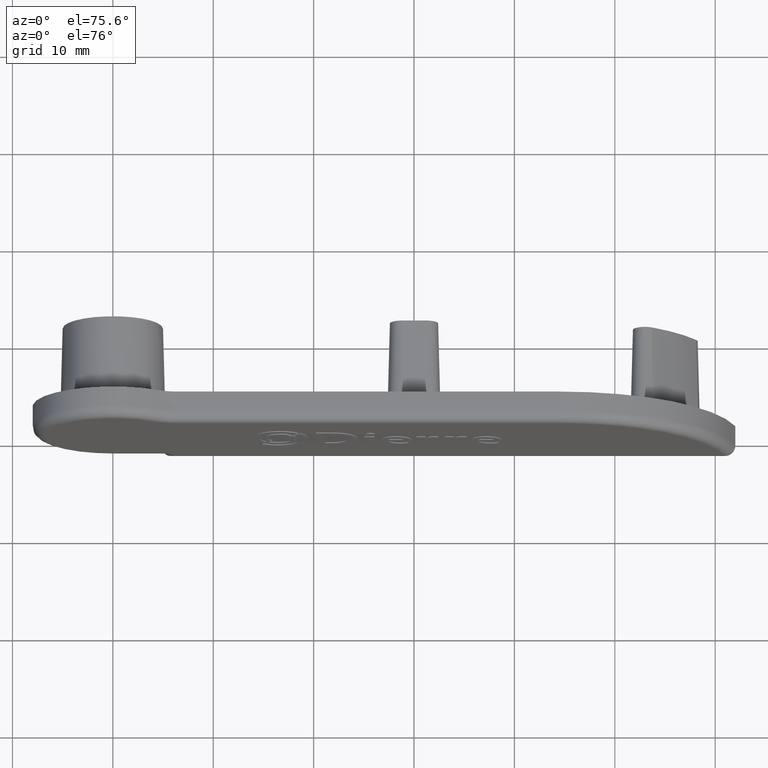
[diagram: clean part render]
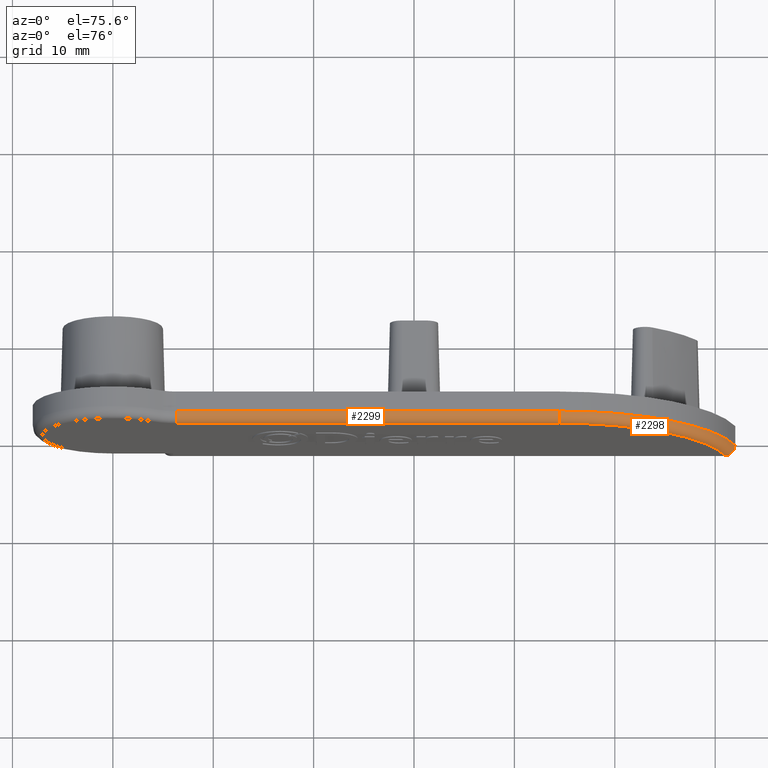
[diagram: same view with one multi-face feature highlighted, each face labeled with its STEP entity id]
A machine part, auxiliary view. The highlighted faces form ONE feature: a constant-radius fillet chain: 2 tangent blend faces with common blend radius 1 mm. The faces share edges in the B-rep.
Their STEP definitions:
[1] entity #2299 (Cylinder):
#32=CYLINDRICAL_SURFACE('',#2424,1.);
#46=CIRCLE('',#2423,1.);
#47=CIRCLE('',#2425,1.);
#307=FACE_OUTER_BOUND('',#456,.T.);
#456=EDGE_LOOP('',(#1933,#1934,#1935,#1936));
#651=LINE('',#4329,#862);
#656=LINE('',#4358,#867);
#862=VECTOR('',#2743,10.);
#867=VECTOR('',#2778,10.);
#1078=VERTEX_POINT('',#4326);
#1079=VERTEX_POINT('',#4328);
#1087=VERTEX_POINT('',#4352);
#1088=VERTEX_POINT('',#4356);
#1369=EDGE_CURVE('',#1079,#1078,#651,.T.);
#1381=EDGE_CURVE('',#1087,#1078,#46,.T.);
#1382=EDGE_CURVE('',#1088,#1079,#47,.T.);
#1383=EDGE_CURVE('',#1087,#1088,#656,.T.);
#1933=ORIENTED_EDGE('',*,*,#1382,.T.);
#1934=ORIENTED_EDGE('',*,*,#1369,.T.);
#1935=ORIENTED_EDGE('',*,*,#1381,.F.);
#1936=ORIENTED_EDGE('',*,*,#1383,.T.);
#2299=ADVANCED_FACE('',(#307),#32,.T.);
#2423=AXIS2_PLACEMENT_3D('',#4354,#2772,#2773);
#2424=AXIS2_PLACEMENT_3D('',#4355,#2774,#2775);
#2425=AXIS2_PLACEMENT_3D('',#4357,#2776,#2777);
#2743=DIRECTION('',(1.,0.,-1.16397745191681E-16));
#2772=DIRECTION('center_axis',(1.,0.,0.));
#2773=DIRECTION('ref_axis',(0.,0.,1.));
#2774=DIRECTION('center_axis',(-1.,0.,1.16397745191681E-16));
#2775=DIRECTION('ref_axis',(0.,-0.707106781186547,0.707106781186548));
#2776=DIRECTION('center_axis',(1.,0.,-1.11022302462516E-15));
#2777=DIRECTION('ref_axis',(1.11022302462516E-15,0.,1.));
#2778=DIRECTION('',(-1.,0.,1.16397745191681E-16));
#4326=CARTESIAN_POINT('',(44.4772883581417,-1.5,4.99999999999997));
#4328=CARTESIAN_POINT('',(6.32455532033678,-1.5,4.99999999999998));
#4329=CARTESIAN_POINT('',(16.4975857450801,-1.5,4.99999999999998));
#4352=CARTESIAN_POINT('',(44.4772883581417,-0.5,5.99999999999998));
#4354=CARTESIAN_POINT('Origin',(44.4772883581417,-0.5,4.99999999999997));
#4355=CARTESIAN_POINT('Origin',(16.4975857450801,-0.5,4.99999999999998));
#4356=CARTESIAN_POINT('',(6.32455532033679,-0.5,5.99999999999998));
#4357=CARTESIAN_POINT('Origin',(6.32455532033678,-0.5,4.99999999999998));
#4358=CARTESIAN_POINT('',(16.4975857450801,-0.5,5.99999999999998));
[2] entity #2298 (Torus):
#25=TOROIDAL_SURFACE('',#2420,17.,1.);
#40=CIRCLE('',#2410,17.);
#44=CIRCLE('',#2421,1.);
#45=CIRCLE('',#2422,18.);
#46=CIRCLE('',#2423,1.);
#306=FACE_OUTER_BOUND('',#455,.T.);
#455=EDGE_LOOP('',(#1929,#1930,#1931,#1932));
#1076=VERTEX_POINT('',#4323);
#1078=VERTEX_POINT('',#4326);
#1086=VERTEX_POINT('',#4350);
#1087=VERTEX_POINT('',#4352);
#1368=EDGE_CURVE('',#1078,#1076,#40,.T.);
#1379=EDGE_CURVE('',#1076,#1086,#44,.T.);
#1380=EDGE_CURVE('',#1086,#1087,#45,.T.);
#1381=EDGE_CURVE('',#1087,#1078,#46,.T.);
#1929=ORIENTED_EDGE('',*,*,#1379,.T.);
#1930=ORIENTED_EDGE('',*,*,#1380,.T.);
#1931=ORIENTED_EDGE('',*,*,#1381,.T.);
#1932=ORIENTED_EDGE('',*,*,#1368,.T.);
#2298=ADVANCED_FACE('',(#306),#25,.T.);
#2410=AXIS2_PLACEMENT_3D('',#4327,#2741,#2742);
#2420=AXIS2_PLACEMENT_3D('',#4349,#2766,#2767);
#2421=AXIS2_PLACEMENT_3D('',#4351,#2768,#2769);
#2422=AXIS2_PLACEMENT_3D('',#4353,#2770,#2771);
#2423=AXIS2_PLACEMENT_3D('',#4354,#2772,#2773);
#2741=DIRECTION('center_axis',(0.,1.,0.));
#2742=DIRECTION('ref_axis',(0.618346942400843,0.,0.785905247993375));
#2766=DIRECTION('center_axis',(0.,-1.,0.));
#2767=DIRECTION('ref_axis',(0.,0.,-1.));
#2768=DIRECTION('center_axis',(-0.235294117647061,0.,0.971924214226959));
#2769=DIRECTION('ref_axis',(0.,-1.,0.));
#2770=DIRECTION('center_axis',(0.,-1.,0.));
#2771=DIRECTION('ref_axis',(0.618346942400843,0.,0.785905247993376));
#2772=DIRECTION('center_axis',(1.,0.,0.));
#2773=DIRECTION('ref_axis',(0.,0.,1.));
#4323=CARTESIAN_POINT('',(61.,-1.5,-8.00000000000003));
#4326=CARTESIAN_POINT('',(44.4772883581417,-1.5,4.99999999999997));
#4327=CARTESIAN_POINT('Origin',(44.4772883581417,-1.5,-12.));
#4349=CARTESIAN_POINT('Origin',(44.4772883581417,-0.5,-12.));
#4350=CARTESIAN_POINT('',(61.971924214227,-0.5,-7.76470588235297));
#4351=CARTESIAN_POINT('Origin',(61.,-0.5,-8.00000000000003));
#4352=CARTESIAN_POINT('',(44.4772883581417,-0.5,5.99999999999998));
#4353=CARTESIAN_POINT('Origin',(44.4772883581417,-0.5,-12.));
#4354=CARTESIAN_POINT('Origin',(44.4772883581417,-0.5,4.99999999999997));